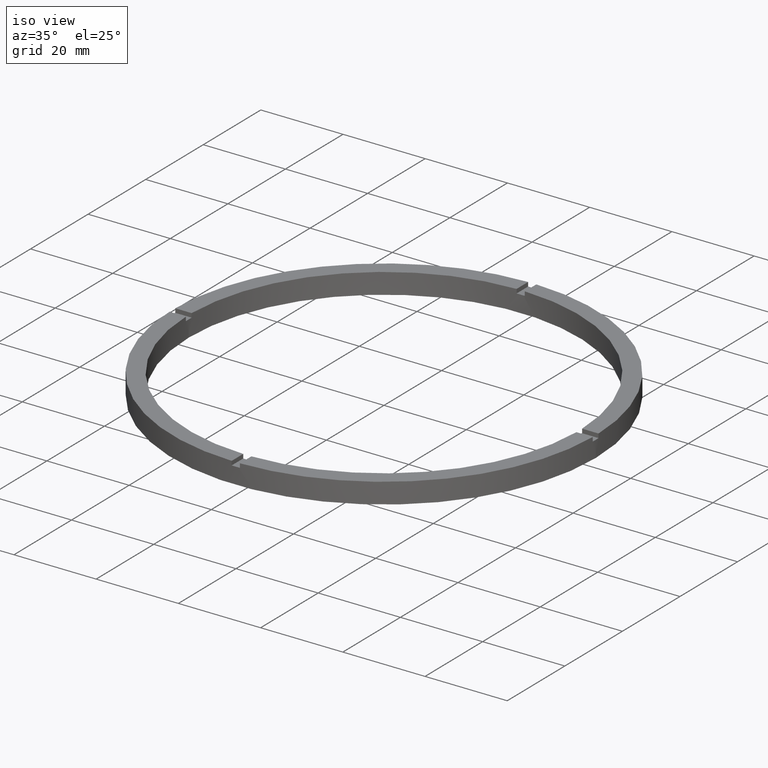
[diagram: clean part render]
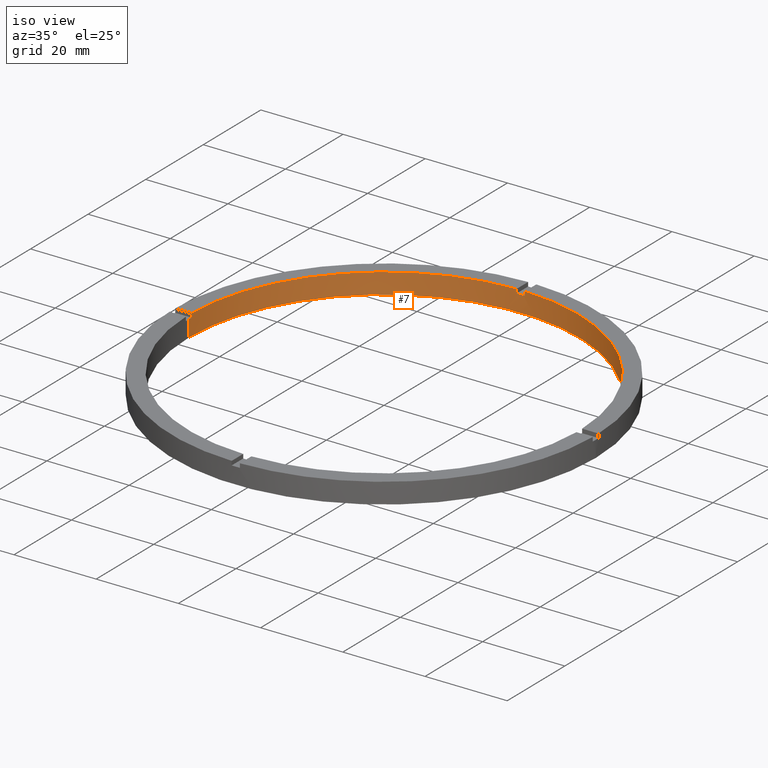
[diagram: same view with one face highlighted and labeled with its STEP entity id]
A machine part, iso view. The second image highlights one B-rep face of the part: STEP entity #7.
In plain terms, the highlighted cylindrical surface (partial cylindrical patch) has radius 47.5 mm, axis along (-0, -0, -1).
Its self-contained STEP definition (entity closure, byte-faithful):
#1 = CARTESIAN_POINT ( 'NONE',  ( -1.000000000000026867, 47.48947251760120736, 5.000000000000000000 ) ) ;
#6 = EDGE_CURVE ( 'NONE', #706, #110, #432, .T. ) ;
#7 = ADVANCED_FACE ( 'NONE', ( #689 ), #681, .F. ) ;
#8 = CARTESIAN_POINT ( 'NONE',  ( -1.000000000000026867, 47.48947251760120736, 4.000000000000000000 ) ) ;
#14 = CIRCLE ( 'NONE', #150, 47.50000000000000711 ) ;
#32 = CIRCLE ( 'NONE', #491, 47.50000000000000711 ) ;
#33 = DIRECTION ( 'NONE',  ( -0.000000000000000000, -0.000000000000000000, -1.000000000000000000 ) ) ;
#37 = CIRCLE ( 'NONE', #760, 47.50000000000000711 ) ;
#42 = LINE ( 'NONE', #761, #335 ) ;
#44 = VECTOR ( 'NONE', #33, 1000.000000000000000 ) ;
#45 = AXIS2_PLACEMENT_3D ( 'NONE', #601, #721, #61 ) ;
#49 = LINE ( 'NONE', #308, #589 ) ;
#53 = LINE ( 'NONE', #1, #577 ) ;
#54 = CARTESIAN_POINT ( 'NONE',  ( 0.9999999999999731326, 47.48947251760120736, 5.000000000000000000 ) ) ;
#61 = DIRECTION ( 'NONE',  ( 1.000000000000000000, 0.000000000000000000, 0.000000000000000000 ) ) ;
#67 = CIRCLE ( 'NONE', #631, 47.50000000000000711 ) ;
#74 = DIRECTION ( 'NONE',  ( -0.000000000000000000, -0.000000000000000000, -1.000000000000000000 ) ) ;
#75 = DIRECTION ( 'NONE',  ( 0.000000000000000000, -0.000000000000000000, 1.000000000000000000 ) ) ;
#91 = DIRECTION ( 'NONE',  ( -0.000000000000000000, -0.000000000000000000, -1.000000000000000000 ) ) ;
#92 = EDGE_CURVE ( 'NONE', #395, #638, #553, .T. ) ;
#100 = CARTESIAN_POINT ( 'NONE',  ( 47.50000000000000711, 5.817072295949929004E-15, 4.000000000000000000 ) ) ;
#104 = AXIS2_PLACEMENT_3D ( 'NONE', #584, #282, #482 ) ;
#110 = VERTEX_POINT ( 'NONE', #243 ) ;
#122 = ORIENTED_EDGE ( 'NONE', *, *, #759, .T. ) ;
#128 = VERTEX_POINT ( 'NONE', #751 ) ;
#129 = ORIENTED_EDGE ( 'NONE', *, *, #366, .T. ) ;
#130 = ORIENTED_EDGE ( 'NONE', *, *, #656, .F. ) ;
#136 = EDGE_CURVE ( 'NONE', #402, #110, #554, .T. ) ;
#150 = AXIS2_PLACEMENT_3D ( 'NONE', #192, #769, #256 ) ;
#151 = ORIENTED_EDGE ( 'NONE', *, *, #6, .F. ) ;
#160 = VERTEX_POINT ( 'NONE', #100 ) ;
#182 = DIRECTION ( 'NONE',  ( 0.000000000000000000, 0.000000000000000000, 1.000000000000000000 ) ) ;
#183 = DIRECTION ( 'NONE',  ( 0.000000000000000000, 0.000000000000000000, 1.000000000000000000 ) ) ;
#192 = CARTESIAN_POINT ( 'NONE',  ( 0.000000000000000000, 0.000000000000000000, 4.000000000000000000 ) ) ;
#204 = ORIENTED_EDGE ( 'NONE', *, *, #231, .T. ) ;
#212 = EDGE_CURVE ( 'NONE', #706, #128, #14, .T. ) ;
#216 = ORIENTED_EDGE ( 'NONE', *, *, #92, .F. ) ;
#231 = EDGE_CURVE ( 'NONE', #395, #389, #276, .T. ) ;
#243 = CARTESIAN_POINT ( 'NONE',  ( -47.48947251760120736, 0.9999999999999688027, 5.000000000000000000 ) ) ;
#245 = EDGE_LOOP ( 'NONE', ( #748, #129, #130, #680, #216, #204, #645, #499, #151, #726, #122, #485 ) ) ;
#256 = DIRECTION ( 'NONE',  ( 1.000000000000000000, 0.000000000000000000, 0.000000000000000000 ) ) ;
#269 = CARTESIAN_POINT ( 'NONE',  ( 0.9999999999999731326, 47.48947251760120736, 5.000000000000000000 ) ) ;
#276 = CIRCLE ( 'NONE', #294, 47.50000000000000711 ) ;
#282 = DIRECTION ( 'NONE',  ( -0.000000000000000000, -0.000000000000000000, -1.000000000000000000 ) ) ;
#294 = AXIS2_PLACEMENT_3D ( 'NONE', #543, #75, #613 ) ;
#308 = CARTESIAN_POINT ( 'NONE',  ( 47.50000000000000711, 5.817072295949929004E-15, 5.000000000000000000 ) ) ;
#313 = CARTESIAN_POINT ( 'NONE',  ( 47.50000000000000711, 5.817072295949929004E-15, 0.000000000000000000 ) ) ;
#316 = DIRECTION ( 'NONE',  ( 1.000000000000000000, 0.000000000000000000, 0.000000000000000000 ) ) ;
#335 = VECTOR ( 'NONE', #91, 1000.000000000000000 ) ;
#339 = LINE ( 'NONE', #723, #44 ) ;
#361 = DIRECTION ( 'NONE',  ( -0.000000000000000000, -0.000000000000000000, -1.000000000000000000 ) ) ;
#366 = EDGE_CURVE ( 'NONE', #160, #463, #32, .T. ) ;
#389 = VERTEX_POINT ( 'NONE', #8 ) ;
#395 = VERTEX_POINT ( 'NONE', #456 ) ;
#402 = VERTEX_POINT ( 'NONE', #514 ) ;
#424 = CARTESIAN_POINT ( 'NONE',  ( 0.000000000000000000, 0.000000000000000000, 0.000000000000000000 ) ) ;
#426 = CARTESIAN_POINT ( 'NONE',  ( -47.48947251760120736, 0.9999999999999688027, 4.000000000000000000 ) ) ;
#427 = VERTEX_POINT ( 'NONE', #765 ) ;
#432 = LINE ( 'NONE', #763, #679 ) ;
#436 = DIRECTION ( 'NONE',  ( 1.000000000000000000, 0.000000000000000000, 0.000000000000000000 ) ) ;
#456 = CARTESIAN_POINT ( 'NONE',  ( 0.9999999999999731326, 47.48947251760120736, 4.000000000000000000 ) ) ;
#463 = VERTEX_POINT ( 'NONE', #667 ) ;
#477 = VERTEX_POINT ( 'NONE', #313 ) ;
#482 = DIRECTION ( 'NONE',  ( -1.000000000000000000, 0.000000000000000000, 0.000000000000000000 ) ) ;
#485 = ORIENTED_EDGE ( 'NONE', *, *, #527, .F. ) ;
#486 = EDGE_CURVE ( 'NONE', #160, #477, #49, .T. ) ;
#489 = EDGE_CURVE ( 'NONE', #402, #389, #53, .T. ) ;
#491 = AXIS2_PLACEMENT_3D ( 'NONE', #616, #743, #316 ) ;
#492 = DIRECTION ( 'NONE',  ( 0.000000000000000000, 0.000000000000000000, 1.000000000000000000 ) ) ;
#499 = ORIENTED_EDGE ( 'NONE', *, *, #136, .T. ) ;
#502 = CARTESIAN_POINT ( 'NONE',  ( 0.000000000000000000, 0.000000000000000000, 5.000000000000000000 ) ) ;
#514 = CARTESIAN_POINT ( 'NONE',  ( -1.000000000000026867, 47.48947251760120736, 5.000000000000000000 ) ) ;
#527 = EDGE_CURVE ( 'NONE', #477, #673, #37, .T. ) ;
#534 = CARTESIAN_POINT ( 'NONE',  ( -47.50000000000000711, 0.000000000000000000, 0.000000000000000000 ) ) ;
#543 = CARTESIAN_POINT ( 'NONE',  ( 0.000000000000000000, 0.000000000000000000, 4.000000000000000000 ) ) ;
#545 = DIRECTION ( 'NONE',  ( 1.000000000000000000, 0.000000000000000000, 0.000000000000000000 ) ) ;
#553 = LINE ( 'NONE', #54, #572 ) ;
#554 = CIRCLE ( 'NONE', #45, 47.50000000000000711 ) ;
#556 = DIRECTION ( 'NONE',  ( 0.000000000000000000, 0.000000000000000000, 1.000000000000000000 ) ) ;
#572 = VECTOR ( 'NONE', #182, 1000.000000000000000 ) ;
#577 = VECTOR ( 'NONE', #74, 1000.000000000000000 ) ;
#584 = CARTESIAN_POINT ( 'NONE',  ( 0.000000000000000000, 0.000000000000000000, 5.000000000000000000 ) ) ;
#589 = VECTOR ( 'NONE', #361, 1000.000000000000000 ) ;
#601 = CARTESIAN_POINT ( 'NONE',  ( 0.000000000000000000, 0.000000000000000000, 5.000000000000000000 ) ) ;
#611 = EDGE_CURVE ( 'NONE', #427, #638, #67, .T. ) ;
#613 = DIRECTION ( 'NONE',  ( 1.000000000000000000, 0.000000000000000000, 0.000000000000000000 ) ) ;
#616 = CARTESIAN_POINT ( 'NONE',  ( 0.000000000000000000, 0.000000000000000000, 4.000000000000000000 ) ) ;
#631 = AXIS2_PLACEMENT_3D ( 'NONE', #502, #183, #436 ) ;
#638 = VERTEX_POINT ( 'NONE', #269 ) ;
#645 = ORIENTED_EDGE ( 'NONE', *, *, #489, .F. ) ;
#656 = EDGE_CURVE ( 'NONE', #427, #463, #339, .T. ) ;
#667 = CARTESIAN_POINT ( 'NONE',  ( 47.48947251760121446, 0.9999999999998450129, 4.000000000000000000 ) ) ;
#673 = VERTEX_POINT ( 'NONE', #534 ) ;
#679 = VECTOR ( 'NONE', #492, 1000.000000000000000 ) ;
#680 = ORIENTED_EDGE ( 'NONE', *, *, #611, .T. ) ;
#681 = CYLINDRICAL_SURFACE ( 'NONE', #104, 47.50000000000000711 ) ;
#689 = FACE_OUTER_BOUND ( 'NONE', #245, .T. ) ;
#706 = VERTEX_POINT ( 'NONE', #426 ) ;
#721 = DIRECTION ( 'NONE',  ( 0.000000000000000000, 0.000000000000000000, 1.000000000000000000 ) ) ;
#723 = CARTESIAN_POINT ( 'NONE',  ( 47.48947251760121446, 0.9999999999998450129, 5.000000000000000000 ) ) ;
#726 = ORIENTED_EDGE ( 'NONE', *, *, #212, .T. ) ;
#743 = DIRECTION ( 'NONE',  ( 0.000000000000000000, 0.000000000000000000, 1.000000000000000000 ) ) ;
#748 = ORIENTED_EDGE ( 'NONE', *, *, #486, .F. ) ;
#751 = CARTESIAN_POINT ( 'NONE',  ( -47.50000000000000711, 0.000000000000000000, 4.000000000000000000 ) ) ;
#759 = EDGE_CURVE ( 'NONE', #128, #673, #42, .T. ) ;
#760 = AXIS2_PLACEMENT_3D ( 'NONE', #424, #556, #545 ) ;
#761 = CARTESIAN_POINT ( 'NONE',  ( -47.50000000000000711, 0.000000000000000000, 5.000000000000000000 ) ) ;
#763 = CARTESIAN_POINT ( 'NONE',  ( -47.48947251760120736, 0.9999999999999688027, 5.000000000000000000 ) ) ;
#765 = CARTESIAN_POINT ( 'NONE',  ( 47.48947251760121446, 0.9999999999998450129, 5.000000000000000000 ) ) ;
#769 = DIRECTION ( 'NONE',  ( 0.000000000000000000, 0.000000000000000000, 1.000000000000000000 ) ) ;